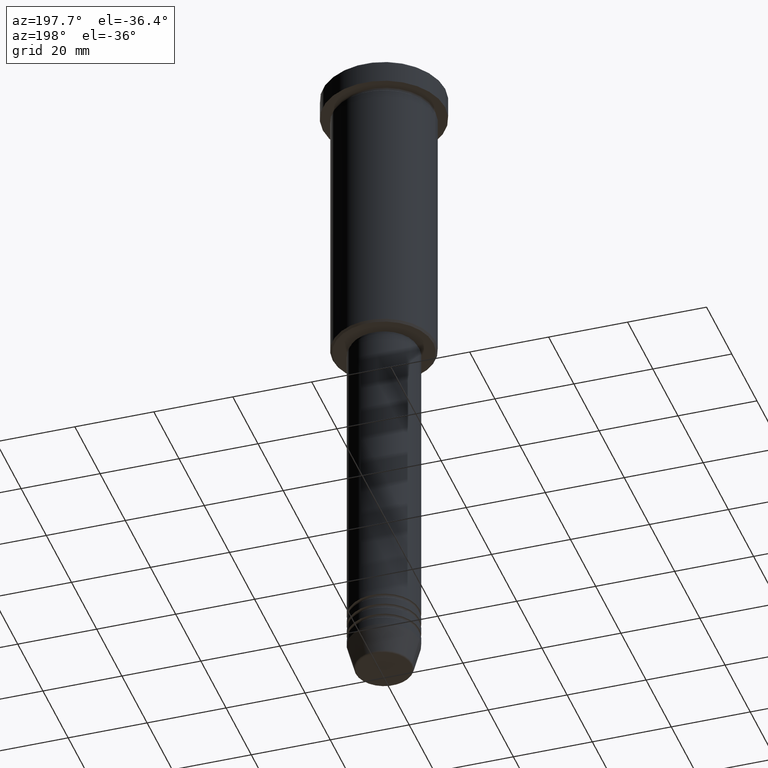
[diagram: clean part render]
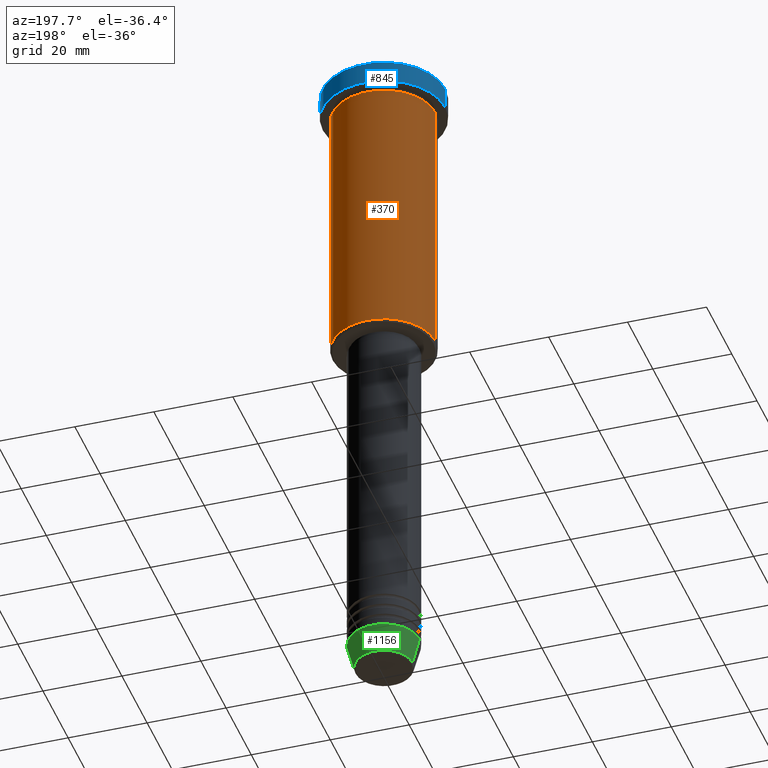
[diagram: same view with three faces highlighted in distinct colors, each labeled with its STEP entity id]
A machine part, auxiliary view with three faces highlighted in distinct colors.
Their STEP definitions:

[orange] entity #370 — the highlighted cylindrical surface (partial cylindrical patch) has radius 13 mm, axis along (-0, -0, 1).
#59 = VECTOR ( 'NONE', #612, 1000.000000000000000 ) ;
#71 = AXIS2_PLACEMENT_3D ( 'NONE', #136, #1119, #468 ) ;
#97 = ORIENTED_EDGE ( 'NONE', *, *, #479, .F. ) ;
#110 = VERTEX_POINT ( 'NONE', #295 ) ;
#123 = DIRECTION ( 'NONE',  ( 1.000000000000000000, 0.000000000000000000, 0.000000000000000000 ) ) ;
#136 = CARTESIAN_POINT ( 'NONE',  ( 0.000000000000000000, 0.000000000000000000, -6.999999999999995559 ) ) ;
#145 = DIRECTION ( 'NONE',  ( -0.000000000000000000, -0.000000000000000000, 1.000000000000000000 ) ) ;
#186 = CIRCLE ( 'NONE', #71, 13.00000000000000000 ) ;
#200 = CARTESIAN_POINT ( 'NONE',  ( 0.000000000000000000, 0.000000000000000000, -75.50000000000002842 ) ) ;
#227 = CARTESIAN_POINT ( 'NONE',  ( 13.00000000000000000, 0.000000000000000000, 0.000000000000000000 ) ) ;
#237 = CIRCLE ( 'NONE', #697, 13.00000000000000000 ) ;
#258 = CARTESIAN_POINT ( 'NONE',  ( -13.00000000000000000, 1.592040838891559095E-15, 0.000000000000000000 ) ) ;
#279 = DIRECTION ( 'NONE',  ( -0.000000000000000000, -0.000000000000000000, 1.000000000000000000 ) ) ;
#283 = DIRECTION ( 'NONE',  ( -1.000000000000000000, 0.000000000000000000, 0.000000000000000000 ) ) ;
#295 = CARTESIAN_POINT ( 'NONE',  ( 13.00000000000000000, 0.000000000000000000, -6.999999999999995559 ) ) ;
#322 = ORIENTED_EDGE ( 'NONE', *, *, #648, .F. ) ;
#343 = EDGE_CURVE ( 'NONE', #456, #819, #1074, .T. ) ;
#368 = DIRECTION ( 'NONE',  ( -0.000000000000000000, -0.000000000000000000, 1.000000000000000000 ) ) ;
#370 = ADVANCED_FACE ( 'NONE', ( #1031 ), #929, .T. ) ;
#449 = ORIENTED_EDGE ( 'NONE', *, *, #343, .T. ) ;
#456 = VERTEX_POINT ( 'NONE', #1109 ) ;
#468 = DIRECTION ( 'NONE',  ( 1.000000000000000000, 0.000000000000000000, 0.000000000000000000 ) ) ;
#479 = EDGE_CURVE ( 'NONE', #110, #819, #186, .T. ) ;
#488 = LINE ( 'NONE', #227, #883 ) ;
#550 = AXIS2_PLACEMENT_3D ( 'NONE', #653, #368, #123 ) ;
#592 = VERTEX_POINT ( 'NONE', #766 ) ;
#612 = DIRECTION ( 'NONE',  ( -0.000000000000000000, -0.000000000000000000, 1.000000000000000000 ) ) ;
#648 = EDGE_CURVE ( 'NONE', #592, #110, #488, .T. ) ;
#653 = CARTESIAN_POINT ( 'NONE',  ( 0.000000000000000000, 0.000000000000000000, 0.000000000000000000 ) ) ;
#697 = AXIS2_PLACEMENT_3D ( 'NONE', #200, #279, #283 ) ;
#766 = CARTESIAN_POINT ( 'NONE',  ( 13.00000000000000000, 0.000000000000000000, -75.50000000000002842 ) ) ;
#819 = VERTEX_POINT ( 'NONE', #832 ) ;
#832 = CARTESIAN_POINT ( 'NONE',  ( -13.00000000000000000, 1.592040838891559095E-15, -6.999999999999995559 ) ) ;
#883 = VECTOR ( 'NONE', #145, 1000.000000000000000 ) ;
#929 = CYLINDRICAL_SURFACE ( 'NONE', #550, 13.00000000000000000 ) ;
#944 = ORIENTED_EDGE ( 'NONE', *, *, #1115, .T. ) ;
#1028 = EDGE_LOOP ( 'NONE', ( #944, #449, #97, #322 ) ) ;
#1031 = FACE_OUTER_BOUND ( 'NONE', #1028, .T. ) ;
#1074 = LINE ( 'NONE', #258, #59 ) ;
#1109 = CARTESIAN_POINT ( 'NONE',  ( -13.00000000000000000, 1.592040838891559095E-15, -75.50000000000002842 ) ) ;
#1115 = EDGE_CURVE ( 'NONE', #592, #456, #237, .T. ) ;
#1119 = DIRECTION ( 'NONE',  ( -0.000000000000000000, -0.000000000000000000, 1.000000000000000000 ) ) ;

[blue] entity #845 — the highlighted cylindrical surface (partial cylindrical patch) has radius 15.5 mm, axis along (-0, -0, 1).
#14 = LINE ( 'NONE', #724, #961 ) ;
#23 = CARTESIAN_POINT ( 'NONE',  ( 0.000000000000000000, 0.000000000000000000, 0.000000000000000000 ) ) ;
#70 = AXIS2_PLACEMENT_3D ( 'NONE', #23, #824, #917 ) ;
#125 = CARTESIAN_POINT ( 'NONE',  ( 15.50000000000000000, 0.000000000000000000, -5.999999999999995559 ) ) ;
#181 = VERTEX_POINT ( 'NONE', #968 ) ;
#206 = CARTESIAN_POINT ( 'NONE',  ( 15.50000000000000000, 0.000000000000000000, -0.5000000000000125455 ) ) ;
#304 = CARTESIAN_POINT ( 'NONE',  ( 0.000000000000000000, 0.000000000000000000, -0.5000000000000125455 ) ) ;
#354 = DIRECTION ( 'NONE',  ( -0.000000000000000000, -0.000000000000000000, 1.000000000000000000 ) ) ;
#398 = EDGE_CURVE ( 'NONE', #181, #1053, #14, .T. ) ;
#408 = VECTOR ( 'NONE', #354, 1000.000000000000000 ) ;
#465 = DIRECTION ( 'NONE',  ( 1.000000000000000000, 0.000000000000000000, 0.000000000000000000 ) ) ;
#485 = EDGE_LOOP ( 'NONE', ( #662, #652, #1103, #797 ) ) ;
#505 = DIRECTION ( 'NONE',  ( -0.000000000000000000, -0.000000000000000000, 1.000000000000000000 ) ) ;
#553 = FACE_OUTER_BOUND ( 'NONE', #485, .T. ) ;
#584 = CARTESIAN_POINT ( 'NONE',  ( 0.000000000000000000, 0.000000000000000000, -5.999999999999995559 ) ) ;
#631 = CYLINDRICAL_SURFACE ( 'NONE', #70, 15.50000000000000000 ) ;
#638 = DIRECTION ( 'NONE',  ( -0.000000000000000000, -0.000000000000000000, 1.000000000000000000 ) ) ;
#652 = ORIENTED_EDGE ( 'NONE', *, *, #398, .T. ) ;
#655 = DIRECTION ( 'NONE',  ( 0.000000000000000000, 0.000000000000000000, -1.000000000000000000 ) ) ;
#660 = EDGE_CURVE ( 'NONE', #905, #181, #817, .T. ) ;
#662 = ORIENTED_EDGE ( 'NONE', *, *, #660, .T. ) ;
#724 = CARTESIAN_POINT ( 'NONE',  ( -15.50000000000000000, 1.898202538678397557E-15, 0.000000000000000000 ) ) ;
#767 = EDGE_CURVE ( 'NONE', #905, #1181, #886, .T. ) ;
#797 = ORIENTED_EDGE ( 'NONE', *, *, #767, .F. ) ;
#817 = CIRCLE ( 'NONE', #1089, 15.50000000000000000 ) ;
#824 = DIRECTION ( 'NONE',  ( -0.000000000000000000, -0.000000000000000000, 1.000000000000000000 ) ) ;
#845 = ADVANCED_FACE ( 'NONE', ( #553 ), #631, .T. ) ;
#854 = DIRECTION ( 'NONE',  ( 1.000000000000000000, 0.000000000000000000, 0.000000000000000000 ) ) ;
#856 = EDGE_CURVE ( 'NONE', #1053, #1181, #1010, .T. ) ;
#886 = LINE ( 'NONE', #1165, #408 ) ;
#905 = VERTEX_POINT ( 'NONE', #125 ) ;
#917 = DIRECTION ( 'NONE',  ( 1.000000000000000000, 0.000000000000000000, 0.000000000000000000 ) ) ;
#932 = AXIS2_PLACEMENT_3D ( 'NONE', #304, #655, #465 ) ;
#961 = VECTOR ( 'NONE', #638, 1000.000000000000000 ) ;
#968 = CARTESIAN_POINT ( 'NONE',  ( -15.50000000000000000, 1.898202538678397557E-15, -5.999999999999995559 ) ) ;
#980 = CARTESIAN_POINT ( 'NONE',  ( -15.50000000000000000, 1.898202538678397557E-15, -0.5000000000000125455 ) ) ;
#1010 = CIRCLE ( 'NONE', #932, 15.50000000000000000 ) ;
#1053 = VERTEX_POINT ( 'NONE', #980 ) ;
#1089 = AXIS2_PLACEMENT_3D ( 'NONE', #584, #505, #854 ) ;
#1103 = ORIENTED_EDGE ( 'NONE', *, *, #856, .T. ) ;
#1165 = CARTESIAN_POINT ( 'NONE',  ( 15.50000000000000000, 0.000000000000000000, 0.000000000000000000 ) ) ;
#1181 = VERTEX_POINT ( 'NONE', #206 ) ;

[green] entity #1156 — the highlighted conical surface has half-angle 15 deg.
#34 = DIRECTION ( 'NONE',  ( 1.000000000000000000, 0.000000000000000000, 0.000000000000000000 ) ) ;
#39 = CARTESIAN_POINT ( 'NONE',  ( -9.000000000000000000, 1.102182119232617714E-15, -164.0000000000000000 ) ) ;
#78 = AXIS2_PLACEMENT_3D ( 'NONE', #242, #582, #948 ) ;
#161 = VERTEX_POINT ( 'NONE', #578 ) ;
#162 = EDGE_CURVE ( 'NONE', #676, #637, #999, .T. ) ;
#242 = CARTESIAN_POINT ( 'NONE',  ( 0.000000000000000000, 0.000000000000000000, -164.0000000000000000 ) ) ;
#256 = VERTEX_POINT ( 'NONE', #1179 ) ;
#291 = VECTOR ( 'NONE', #740, 1000.000000000000000 ) ;
#315 = CARTESIAN_POINT ( 'NONE',  ( 9.000000000000000000, 0.000000000000000000, -164.0000000000000000 ) ) ;
#316 = ORIENTED_EDGE ( 'NONE', *, *, #549, .T. ) ;
#379 = ORIENTED_EDGE ( 'NONE', *, *, #863, .F. ) ;
#380 = LINE ( 'NONE', #922, #291 ) ;
#477 = DIRECTION ( 'NONE',  ( -0.000000000000000000, -0.000000000000000000, 1.000000000000000000 ) ) ;
#496 = EDGE_CURVE ( 'NONE', #256, #637, #931, .T. ) ;
#549 = EDGE_CURVE ( 'NONE', #161, #256, #565, .T. ) ;
#565 = CIRCLE ( 'NONE', #643, 7.223655072137196598 ) ;
#578 = CARTESIAN_POINT ( 'NONE',  ( 7.223655072137196598, 0.000000000000000000, -170.6294095225512706 ) ) ;
#582 = DIRECTION ( 'NONE',  ( -0.000000000000000000, -0.000000000000000000, 1.000000000000000000 ) ) ;
#600 = EDGE_LOOP ( 'NONE', ( #316, #738, #1154, #379 ) ) ;
#618 = DIRECTION ( 'NONE',  ( -0.000000000000000000, -0.000000000000000000, 1.000000000000000000 ) ) ;
#628 = DIRECTION ( 'NONE',  ( 1.000000000000000000, 0.000000000000000000, 0.000000000000000000 ) ) ;
#637 = VERTEX_POINT ( 'NONE', #39 ) ;
#643 = AXIS2_PLACEMENT_3D ( 'NONE', #924, #477, #34 ) ;
#676 = VERTEX_POINT ( 'NONE', #315 ) ;
#738 = ORIENTED_EDGE ( 'NONE', *, *, #496, .T. ) ;
#740 = DIRECTION ( 'NONE',  ( 0.2588190451025213501, 0.000000000000000000, 0.9659258262890680902 ) ) ;
#827 = CARTESIAN_POINT ( 'NONE',  ( -9.000000000000000000, 1.102182119232617714E-15, -164.0000000000000000 ) ) ;
#844 = AXIS2_PLACEMENT_3D ( 'NONE', #1083, #618, #628 ) ;
#863 = EDGE_CURVE ( 'NONE', #161, #676, #380, .T. ) ;
#912 = DIRECTION ( 'NONE',  ( -0.2588190451025213501, 3.169619151431772337E-17, 0.9659258262890680902 ) ) ;
#922 = CARTESIAN_POINT ( 'NONE',  ( 9.000000000000000000, 0.000000000000000000, -164.0000000000000000 ) ) ;
#924 = CARTESIAN_POINT ( 'NONE',  ( 0.000000000000000000, 0.000000000000000000, -170.6294095225512706 ) ) ;
#931 = LINE ( 'NONE', #827, #1173 ) ;
#948 = DIRECTION ( 'NONE',  ( 1.000000000000000000, 0.000000000000000000, 0.000000000000000000 ) ) ;
#976 = CONICAL_SURFACE ( 'NONE', #844, 9.000000000000000000, 0.2617993877991500740 ) ;
#989 = FACE_OUTER_BOUND ( 'NONE', #600, .T. ) ;
#999 = CIRCLE ( 'NONE', #78, 9.000000000000000000 ) ;
#1083 = CARTESIAN_POINT ( 'NONE',  ( 0.000000000000000000, 0.000000000000000000, -164.0000000000000000 ) ) ;
#1154 = ORIENTED_EDGE ( 'NONE', *, *, #162, .F. ) ;
#1156 = ADVANCED_FACE ( 'NONE', ( #989 ), #976, .T. ) ;
#1173 = VECTOR ( 'NONE', #912, 1000.000000000000000 ) ;
#1179 = CARTESIAN_POINT ( 'NONE',  ( -7.223655072137197486, 9.934123627281769054E-16, -170.6294095225512706 ) ) ;